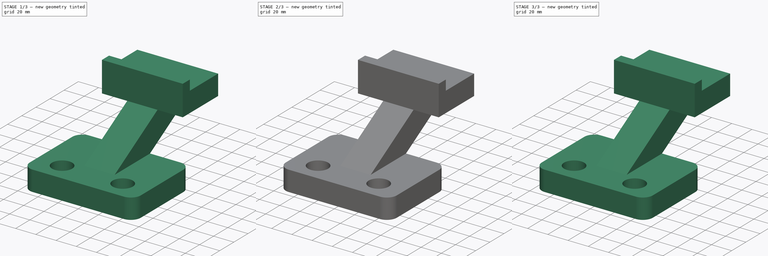
[diagram: build sequence overview — one tinted view per stage of 3, left to right]
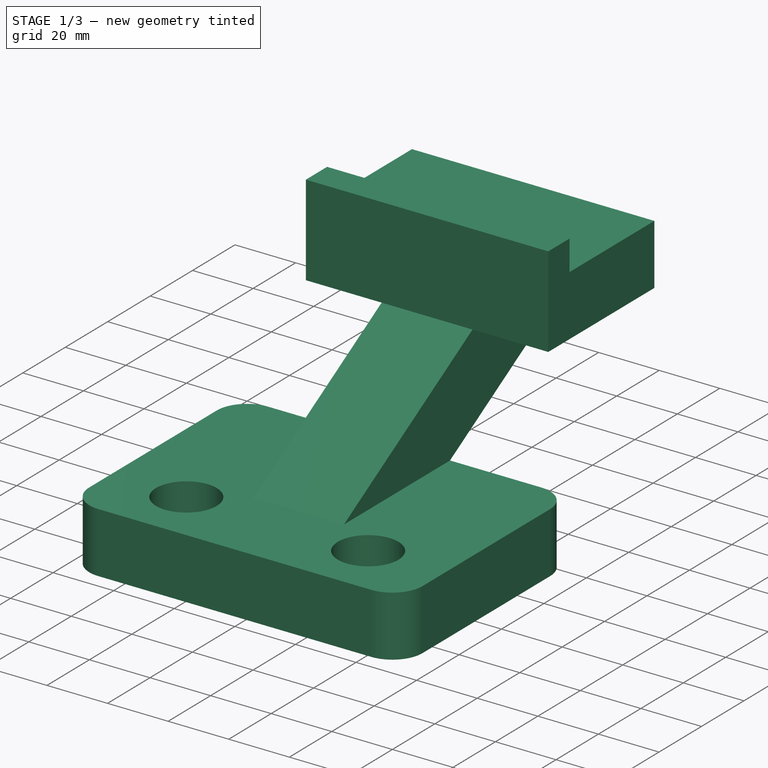
[diagram: stage 1 of 3 — iso view after this stage's code; geometry added in this stage tinted green]
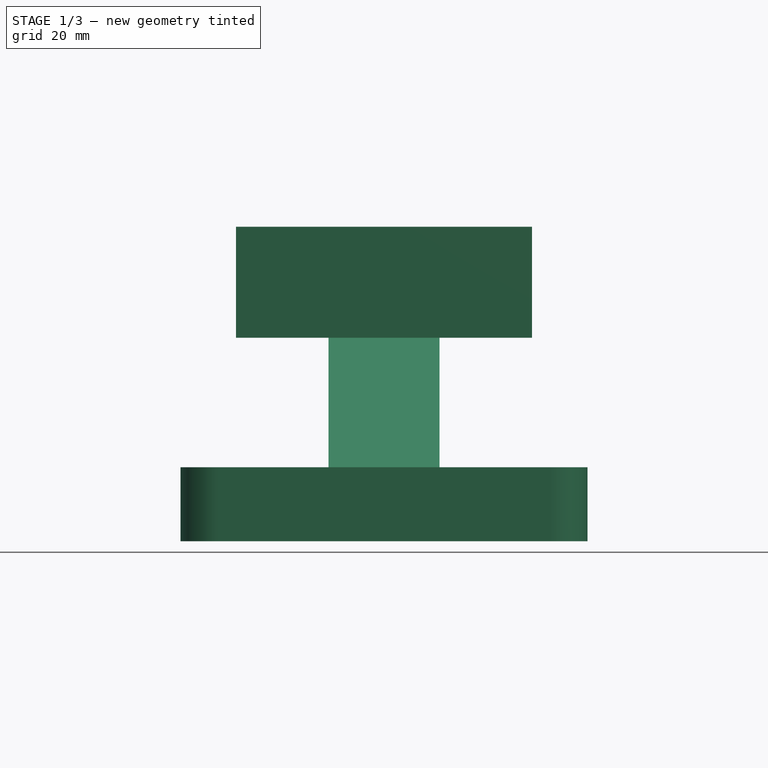
[diagram: stage 1 of 3 — front view after this stage's code; geometry added in this stage tinted green]
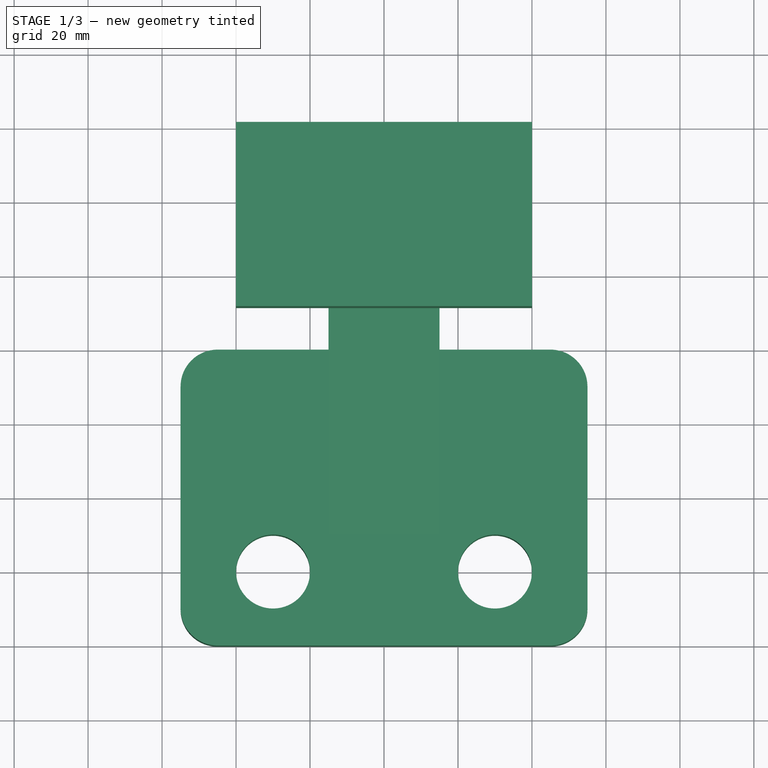
[diagram: stage 1 of 3 — top view after this stage's code; geometry added in this stage tinted green]
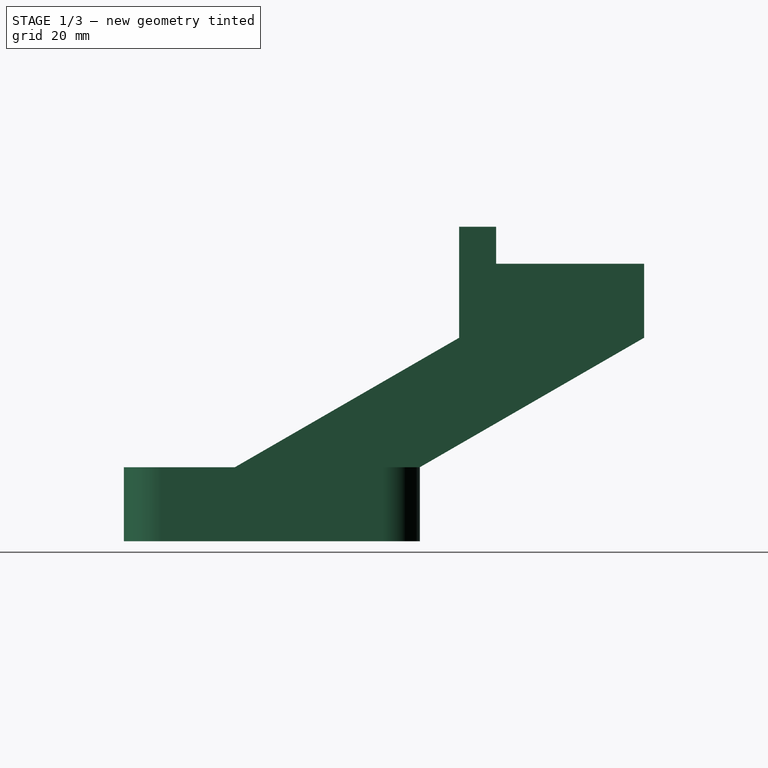
[diagram: stage 1 of 3 — right view after this stage's code; geometry added in this stage tinted green]
FCSTD DOCUMENT  (FreeCAD 0.16R)
Label: Ejer final 28
License: All rights reserved
LicenseURL: http://en.wikipedia.org/wiki/All_rights_reserved
objects: Sketcher::SketchObject×4, PartDesign::Pad×4, Part::Feature×1, Part::MultiFuse×1
note: 14 computed .brp shape members not serialized (recipe doc carries the construction recipe); baked Part::Feature solids carry a one-line shape summary decoded from their .brp

FEATURE [Sketcher::SketchObject] Sketch
  sketch-geometry (10):
    g0: LineSegment StartX=-45 StartY=0 StartZ=0 EndX=45 EndY=0 EndZ=0
    g1: LineSegment StartX=55 StartY=-10 StartZ=0 EndX=55 EndY=-70 EndZ=0
    g2: LineSegment StartX=45 StartY=-80 StartZ=0 EndX=-45 EndY=-80 EndZ=0
    g3: LineSegment StartX=-55 StartY=-70 StartZ=0 EndX=-55 EndY=-10 EndZ=0
    g4: Circle CenterX=-30 CenterY=-60 CenterZ=0 NormalX=0 NormalY=0 NormalZ=1 Radius=10
    g5: Circle CenterX=30 CenterY=-60 CenterZ=0 NormalX=0 NormalY=0 NormalZ=1 Radius=10
    g6: ArcOfCircle CenterX=-45 CenterY=-70 CenterZ=0 NormalX=0 NormalY=0 NormalZ=1 Radius=10 StartAngle=3.14159 EndAngle=4.71239
    g7: ArcOfCircle CenterX=45 CenterY=-70 CenterZ=0 NormalX=0 NormalY=0 NormalZ=1 Radius=10 StartAngle=4.71239 EndAngle=6.28319
    g8: ArcOfCircle CenterX=45 CenterY=-10 CenterZ=0 NormalX=0 NormalY=0 NormalZ=1 Radius=10 StartAngle=0 EndAngle=1.5708
    g9: ArcOfCircle CenterX=-45 CenterY=-10 CenterZ=0 NormalX=0 NormalY=0 NormalZ=1 Radius=10 StartAngle=1.5708 EndAngle=3.14159
  constraints (26):
    c: Horizontal(g0)
    c: Horizontal(g2)
    c: Vertical(g1)
    c: Vertical(g3)
    c: Radius(g5) = 10
    c: Equal(g5,g4)
    c: Tangent(g3,g6) = 1.5708
    c: Tangent(g2,g6) = 1.5708
    c: Tangent(g1,g7) = 1.5708
    c: Tangent(g2,g7) = 1.5708
    c: Tangent(g1,g8) = 1.5708
    c: Tangent(g0,g8) = 1.5708
    c: Tangent(g0,g9) = 1.5708
    c: Tangent(g3,g9) = 1.5708
    c: Radius(g9) = 10
    c: Equal(g9,g8)
    c: Equal(g9,g7)
    c: Equal(g9,g6)
    c: DistanceX(g3,g4) = 25
    c: DistanceX(g5,g1) = 25
    c: DistanceX(g4,g5) = 60
    c: DistanceY(g2,g4) = 20
    c: DistanceY(g2,g5) = 20
    c: DistanceY(g2,g0) = 80
    c: Symmetric(g3,g1,g-2)
    c: PointOnObject(g-1,g0)
FEATURE [PartDesign::Pad] Pad
  Length = 20
  Length2 = 100
  Sketch = -> Sketch
  Type = 0
FEATURE [Part::Feature] Pad003001  label="Pad004"
  shape: bbox 80 x 110.6 x 65 mm, 14 faces (baked)
FEATURE [Part::MultiFuse] Fusion
  Shapes = -> [Pad003001,Pad]
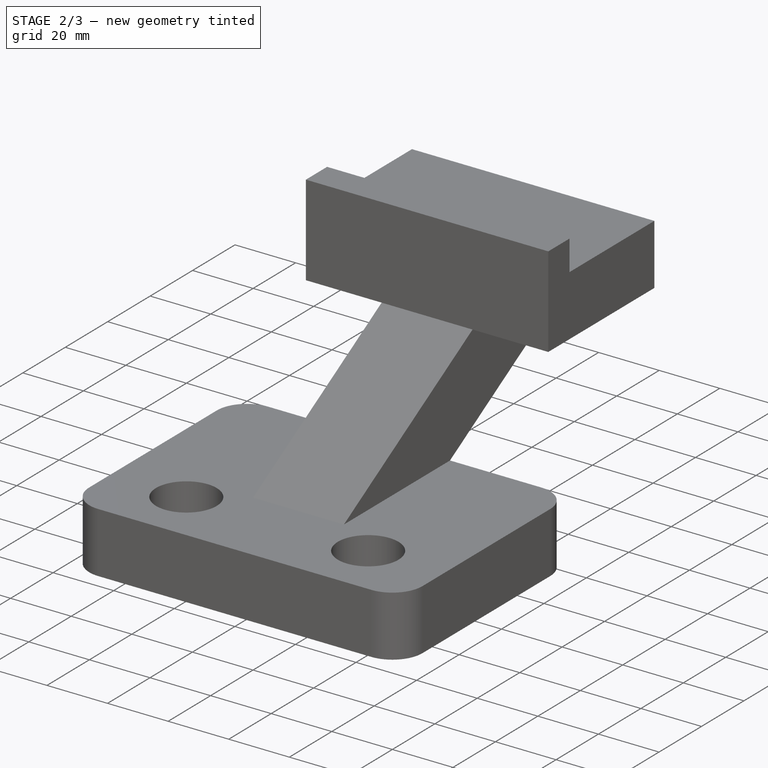
[diagram: stage 2 of 3 — iso view after this stage's code; geometry added in this stage tinted green]
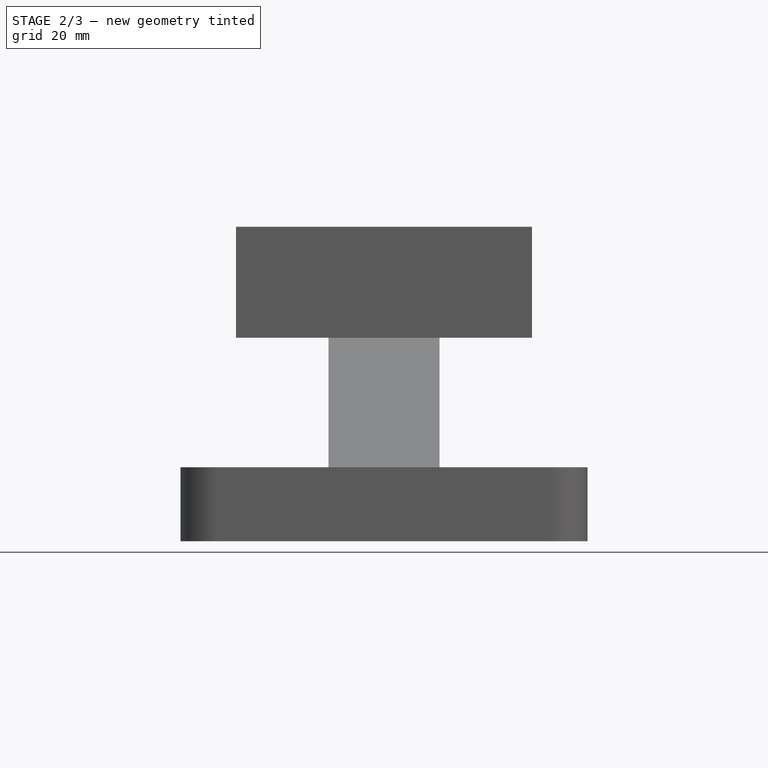
[diagram: stage 2 of 3 — front view after this stage's code; geometry added in this stage tinted green]
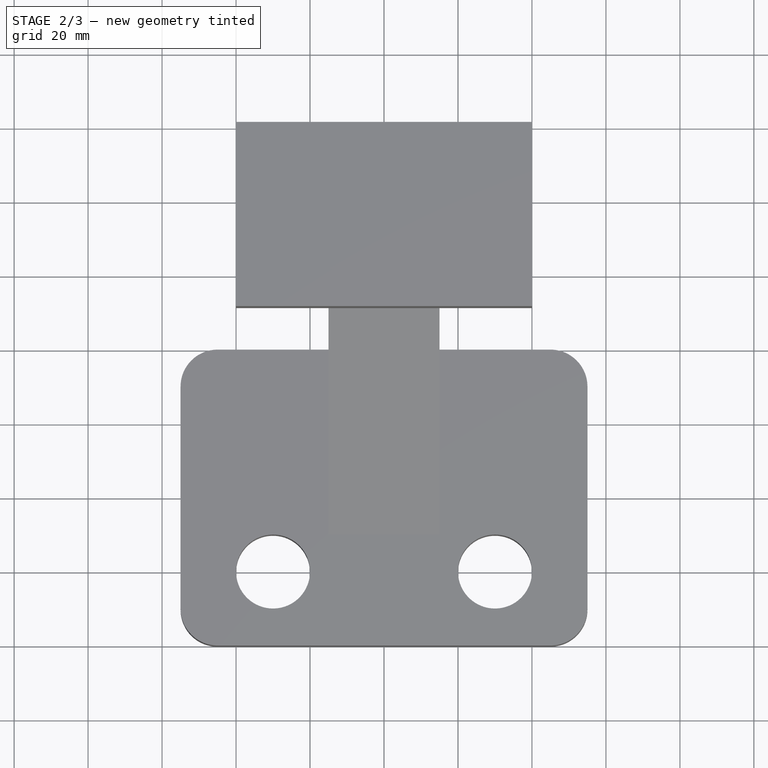
[diagram: stage 2 of 3 — top view after this stage's code; geometry added in this stage tinted green]
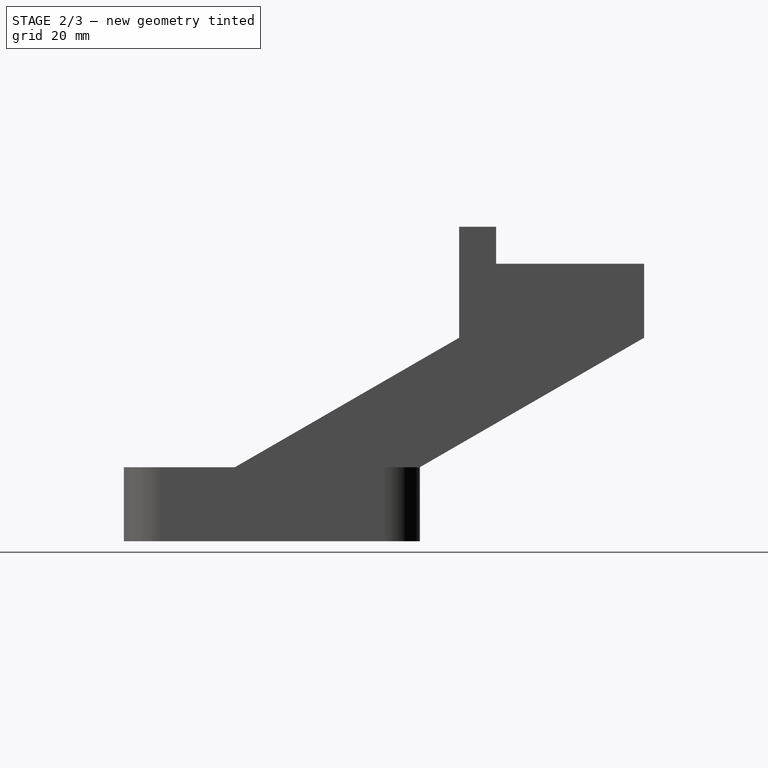
[diagram: stage 2 of 3 — right view after this stage's code; geometry added in this stage tinted green]
FEATURE [Sketcher::SketchObject] Sketch001
  Placement = pos=(0,0,0) rot=(-0.57735,0.57735,0.57735;4.18879rad)
  sketch-geometry (4):
    g0: LineSegment StartX=0 StartY=20 StartZ=0 EndX=50 EndY=20 EndZ=0
    g1: LineSegment StartX=50 StartY=20 StartZ=0 EndX=-10.6218 EndY=55 EndZ=0
    g2: LineSegment StartX=0 StartY=20 StartZ=0 EndX=-60.6218 EndY=55 EndZ=0
    g3: LineSegment StartX=-10.6218 StartY=55 StartZ=0 EndX=-60.6218 EndY=55 EndZ=0
  constraints (12):
    c: PointOnObject(g0,g-2)
    c: Horizontal(g0)
    c: DistanceX(g0,g0) = 50
    c: Coincident(g1,g0)
    c: Coincident(g2,g0)
    c: Angle(g1,g0) = 0.523599
    c: Parallel(g2,g1)
    c: DistanceY(g-1,g0) = 20
    c: DistanceY(g-1,g1) = 55
    c: DistanceY(g-1,g2) = 55
    c: Coincident(g3,g1)
    c: Coincident(g3,g2)
FEATURE [PartDesign::Pad] Pad001
  Length = 30
  Length2 = 100
  Midplane = true
  Placement = pos=(0,0,0) rot=(-0.57735,0.57735,0.57735;4.18879rad)
  Sketch = -> Sketch001
  Type = 0
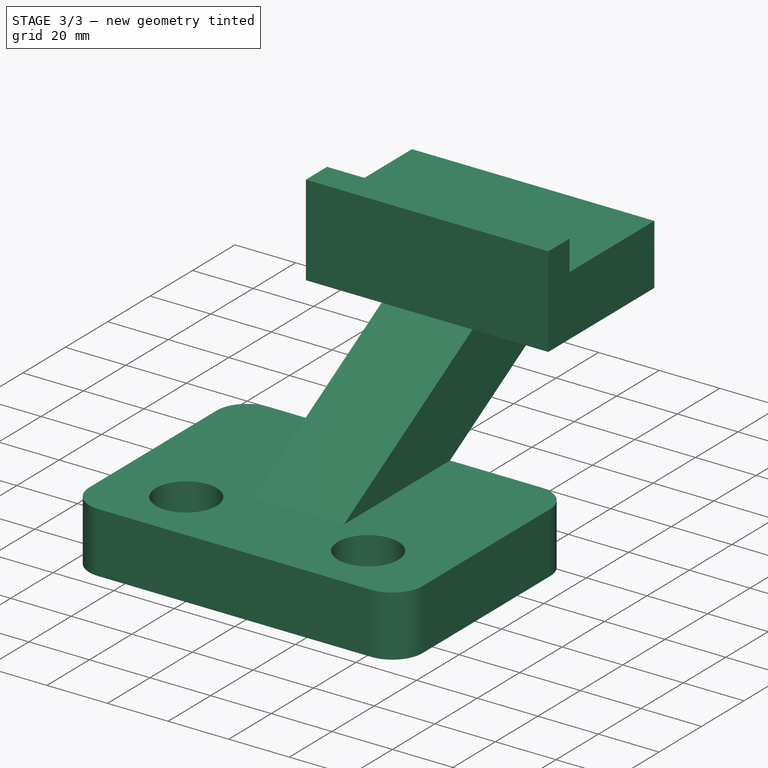
[diagram: stage 3 of 3 — iso view after this stage's code; geometry added in this stage tinted green]
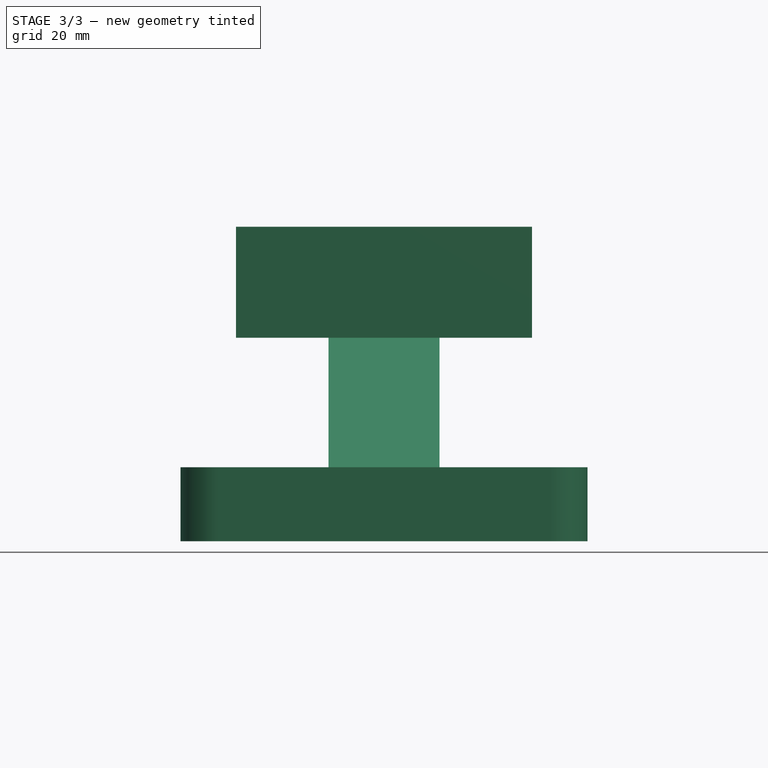
[diagram: stage 3 of 3 — front view after this stage's code; geometry added in this stage tinted green]
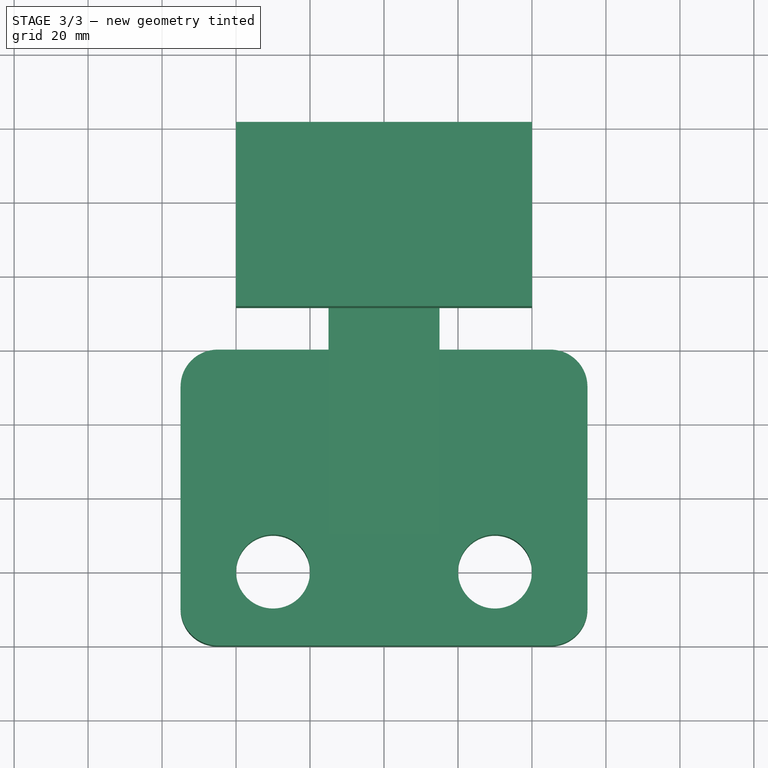
[diagram: stage 3 of 3 — top view after this stage's code; geometry added in this stage tinted green]
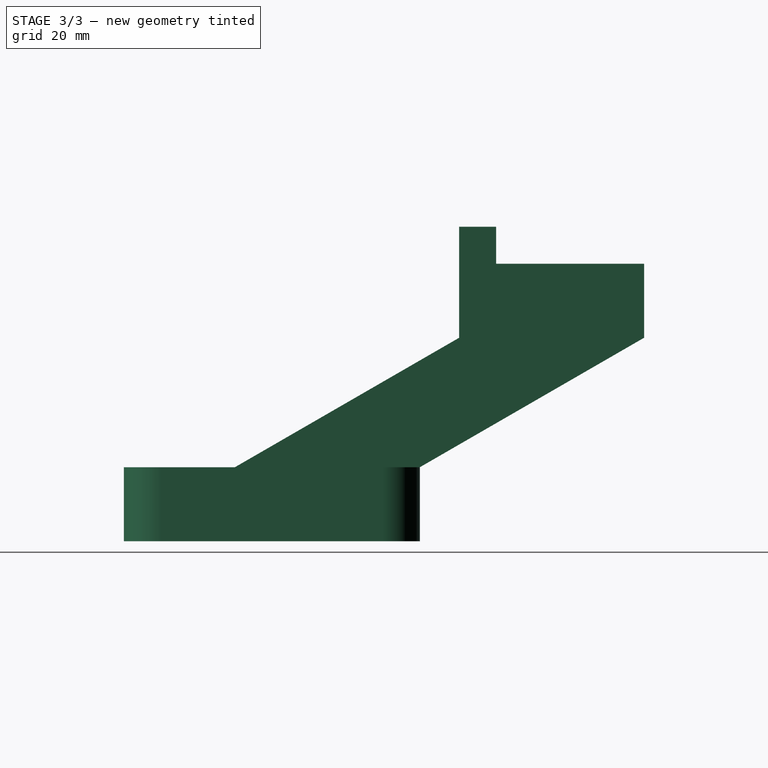
[diagram: stage 3 of 3 — right view after this stage's code; geometry added in this stage tinted green]
FEATURE [Sketcher::SketchObject] Sketch002
  ExternalGeometry = -> [Pad001]
  Placement = pos=(0,0,55) rot=(0,0,1;1.5708rad)
  Support = -> Pad001 [Face3]
  sketch-geometry (4):
    g0: LineSegment StartX=10.6218 StartY=40 StartZ=0 EndX=60.6218 EndY=40 EndZ=0
    g1: LineSegment StartX=60.6218 StartY=40 StartZ=0 EndX=60.6218 EndY=-40 EndZ=0
    g2: LineSegment StartX=60.6218 StartY=-40 StartZ=0 EndX=10.6218 EndY=-40 EndZ=0
    g3: LineSegment StartX=10.6218 StartY=-40 StartZ=0 EndX=10.6218 EndY=40 EndZ=0
  constraints (12):
    c: Coincident(g0,g1)
    c: Coincident(g1,g2)
    c: Coincident(g2,g3)
    c: Coincident(g3,g0)
    c: Horizontal(g0)
    c: Horizontal(g2)
    c: Vertical(g1)
    c: Vertical(g3)
    c: Symmetric(g1,g0,g-1)
    c: PointOnObject(g-3,g3)
    c: DistanceX(g2,g2) = 50
    c: DistanceY(g1,g1) = 80
FEATURE [PartDesign::Pad] Pad002
  Length = 20
  Length2 = 100
  Placement = pos=(0,0,0) rot=(-0.57735,0.57735,0.57735;4.18879rad)
  Sketch = -> Sketch002
  Type = 0
FEATURE [Sketcher::SketchObject] Sketch003
  ExternalGeometry = -> [Pad002]
  Placement = pos=(0,0,75) rot=(0,0,1;1.5708rad)
  Support = -> Pad002 [Face11]
  sketch-geometry (4):
    g0: LineSegment StartX=10.6218 StartY=40 StartZ=0 EndX=20.6218 EndY=40 EndZ=0
    g1: LineSegment StartX=20.6218 StartY=40 StartZ=0 EndX=20.6218 EndY=-40 EndZ=0
    g2: LineSegment StartX=20.6218 StartY=-40 StartZ=0 EndX=10.6218 EndY=-40 EndZ=0
    g3: LineSegment StartX=10.6218 StartY=-40 StartZ=0 EndX=10.6218 EndY=40 EndZ=0
  constraints (11):
    c: Coincident(g0,g1)
    c: Coincident(g1,g2)
    c: Coincident(g2,g3)
    c: Coincident(g3,g0)
    c: Horizontal(g0)
    c: Horizontal(g2)
    c: Vertical(g1)
    c: Vertical(g3)
    c: Coincident(g2,g-3)
    c: Coincident(g0,g-3)
    c: DistanceX(g0,g0) = 10
FEATURE [PartDesign::Pad] Pad003
  Length = 10
  Length2 = 100
  Placement = pos=(0,0,0) rot=(-0.57735,0.57735,0.57735;4.18879rad)
  Sketch = -> Sketch003
  Type = 0
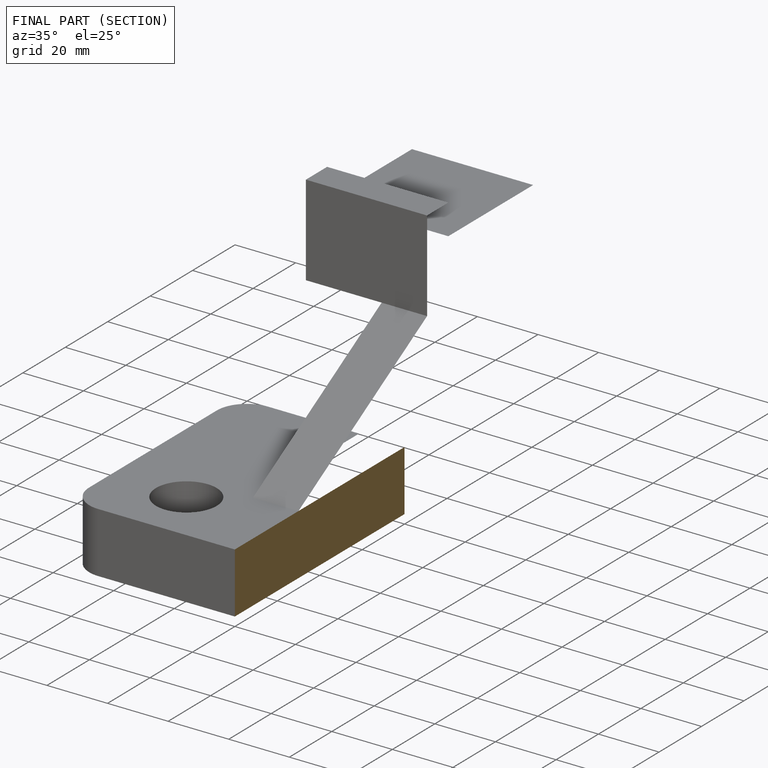
[diagram: finished part — half-section view (interior)]
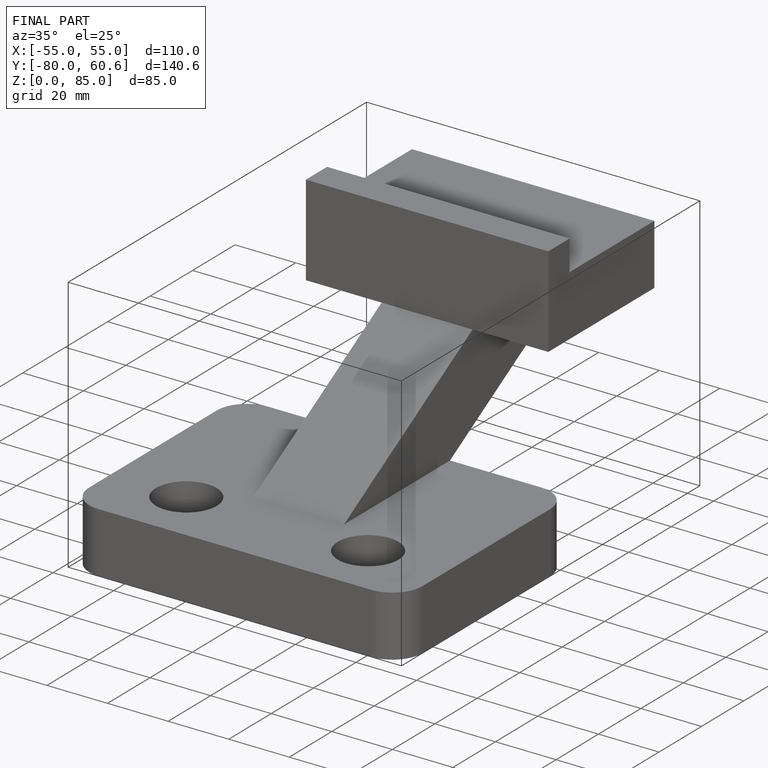
[diagram: finished part — iso view with bounding-box wireframe]
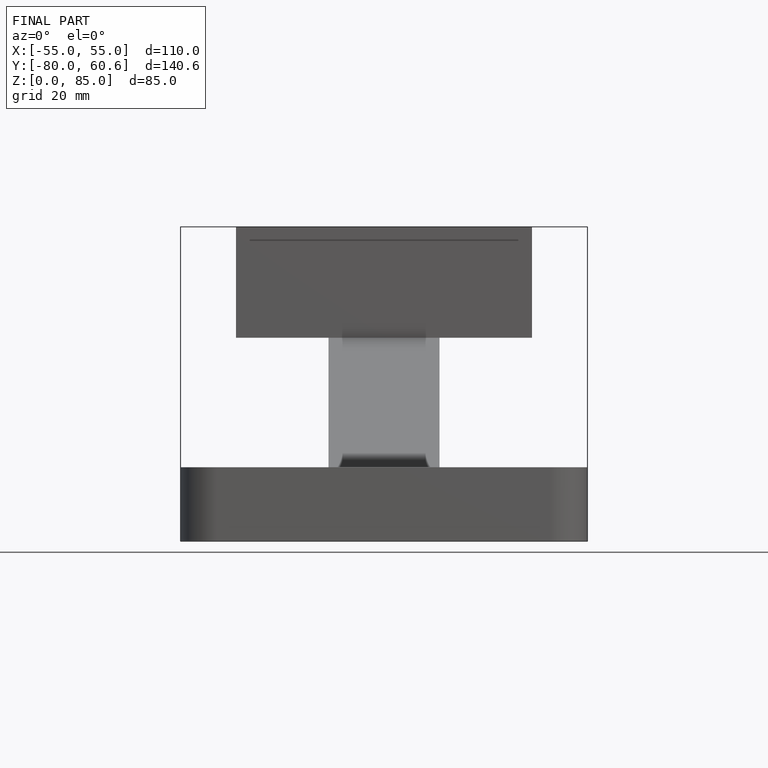
[diagram: finished part — front view with bounding-box wireframe]
